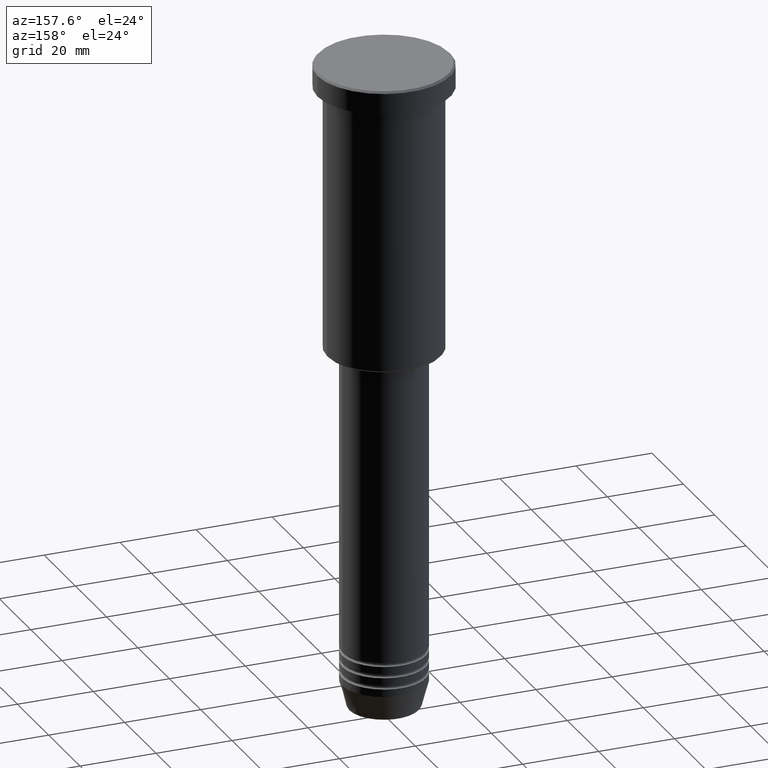
[diagram: clean part render]
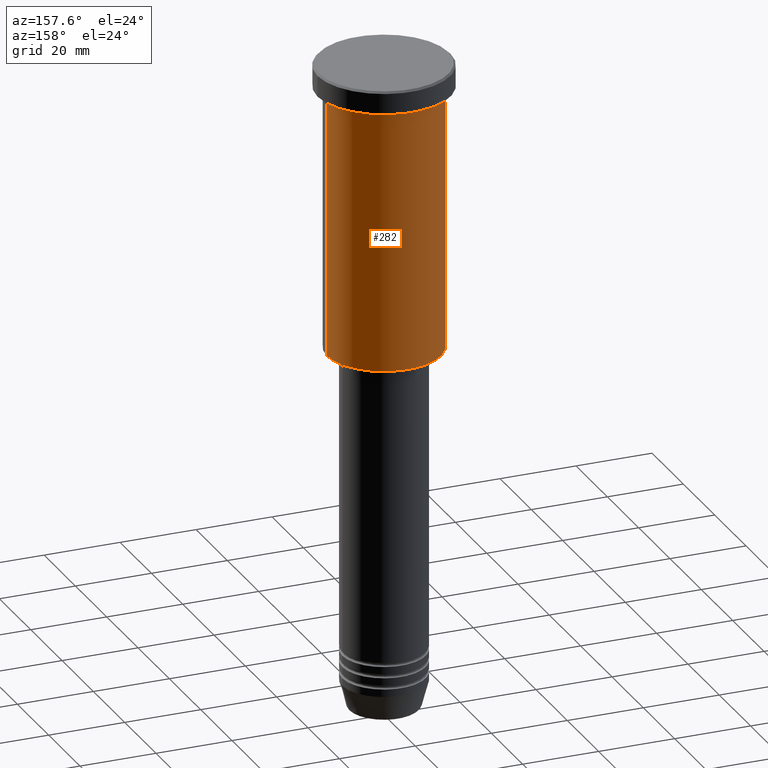
[diagram: same view with one face highlighted and labeled with its STEP entity id]
A machine part, auxiliary view. The second image highlights one B-rep face of the part: STEP entity #282.
In plain terms, the highlighted cylindrical surface (partial cylindrical patch) has radius 15 mm, axis along (-0, -0, 1).
Its self-contained STEP definition (entity closure, byte-faithful):
#59 = CARTESIAN_POINT ( 'NONE',  ( 0.000000000000000000, 0.000000000000000000, -6.999999999999995559 ) ) ;
#138 = VERTEX_POINT ( 'NONE', #885 ) ;
#139 = EDGE_CURVE ( 'NONE', #138, #354, #578, .T. ) ;
#178 = CIRCLE ( 'NONE', #195, 15.00000000000000000 ) ;
#195 = AXIS2_PLACEMENT_3D ( 'NONE', #1161, #709, #977 ) ;
#243 = ORIENTED_EDGE ( 'NONE', *, *, #1121, .F. ) ;
#264 = ORIENTED_EDGE ( 'NONE', *, *, #586, .T. ) ;
#282 = ADVANCED_FACE ( 'NONE', ( #1082 ), #537, .T. ) ;
#314 = DIRECTION ( 'NONE',  ( -0.000000000000000000, -0.000000000000000000, 1.000000000000000000 ) ) ;
#326 = CARTESIAN_POINT ( 'NONE',  ( 15.00000000000000000, 0.000000000000000000, -75.50000000000001421 ) ) ;
#354 = VERTEX_POINT ( 'NONE', #938 ) ;
#358 = VECTOR ( 'NONE', #1124, 1000.000000000000000 ) ;
#361 = VECTOR ( 'NONE', #1090, 1000.000000000000000 ) ;
#366 = VERTEX_POINT ( 'NONE', #326 ) ;
#375 = EDGE_CURVE ( 'NONE', #474, #354, #697, .T. ) ;
#403 = DIRECTION ( 'NONE',  ( -0.000000000000000000, -0.000000000000000000, 1.000000000000000000 ) ) ;
#474 = VERTEX_POINT ( 'NONE', #620 ) ;
#537 = CYLINDRICAL_SURFACE ( 'NONE', #1027, 15.00000000000000000 ) ;
#546 = AXIS2_PLACEMENT_3D ( 'NONE', #59, #314, #831 ) ;
#576 = CARTESIAN_POINT ( 'NONE',  ( 0.000000000000000000, 0.000000000000000000, 0.000000000000000000 ) ) ;
#578 = CIRCLE ( 'NONE', #546, 15.00000000000000000 ) ;
#579 = ORIENTED_EDGE ( 'NONE', *, *, #139, .F. ) ;
#586 = EDGE_CURVE ( 'NONE', #366, #474, #178, .T. ) ;
#620 = CARTESIAN_POINT ( 'NONE',  ( -15.00000000000000000, 1.836970198721029589E-15, -75.50000000000001421 ) ) ;
#645 = EDGE_LOOP ( 'NONE', ( #264, #1016, #579, #243 ) ) ;
#697 = LINE ( 'NONE', #762, #358 ) ;
#709 = DIRECTION ( 'NONE',  ( -0.000000000000000000, -0.000000000000000000, 1.000000000000000000 ) ) ;
#728 = CARTESIAN_POINT ( 'NONE',  ( 15.00000000000000000, 0.000000000000000000, 0.000000000000000000 ) ) ;
#762 = CARTESIAN_POINT ( 'NONE',  ( -15.00000000000000000, 1.836970198721029589E-15, 0.000000000000000000 ) ) ;
#831 = DIRECTION ( 'NONE',  ( 1.000000000000000000, 0.000000000000000000, 0.000000000000000000 ) ) ;
#885 = CARTESIAN_POINT ( 'NONE',  ( 15.00000000000000000, 0.000000000000000000, -6.999999999999995559 ) ) ;
#938 = CARTESIAN_POINT ( 'NONE',  ( -15.00000000000000000, 1.836970198721029589E-15, -6.999999999999995559 ) ) ;
#942 = DIRECTION ( 'NONE',  ( 1.000000000000000000, 0.000000000000000000, 0.000000000000000000 ) ) ;
#977 = DIRECTION ( 'NONE',  ( -1.000000000000000000, 0.000000000000000000, 0.000000000000000000 ) ) ;
#1016 = ORIENTED_EDGE ( 'NONE', *, *, #375, .T. ) ;
#1027 = AXIS2_PLACEMENT_3D ( 'NONE', #576, #403, #942 ) ;
#1082 = FACE_OUTER_BOUND ( 'NONE', #645, .T. ) ;
#1090 = DIRECTION ( 'NONE',  ( -0.000000000000000000, -0.000000000000000000, 1.000000000000000000 ) ) ;
#1115 = LINE ( 'NONE', #728, #361 ) ;
#1121 = EDGE_CURVE ( 'NONE', #366, #138, #1115, .T. ) ;
#1124 = DIRECTION ( 'NONE',  ( -0.000000000000000000, -0.000000000000000000, 1.000000000000000000 ) ) ;
#1161 = CARTESIAN_POINT ( 'NONE',  ( 0.000000000000000000, 0.000000000000000000, -75.50000000000001421 ) ) ;